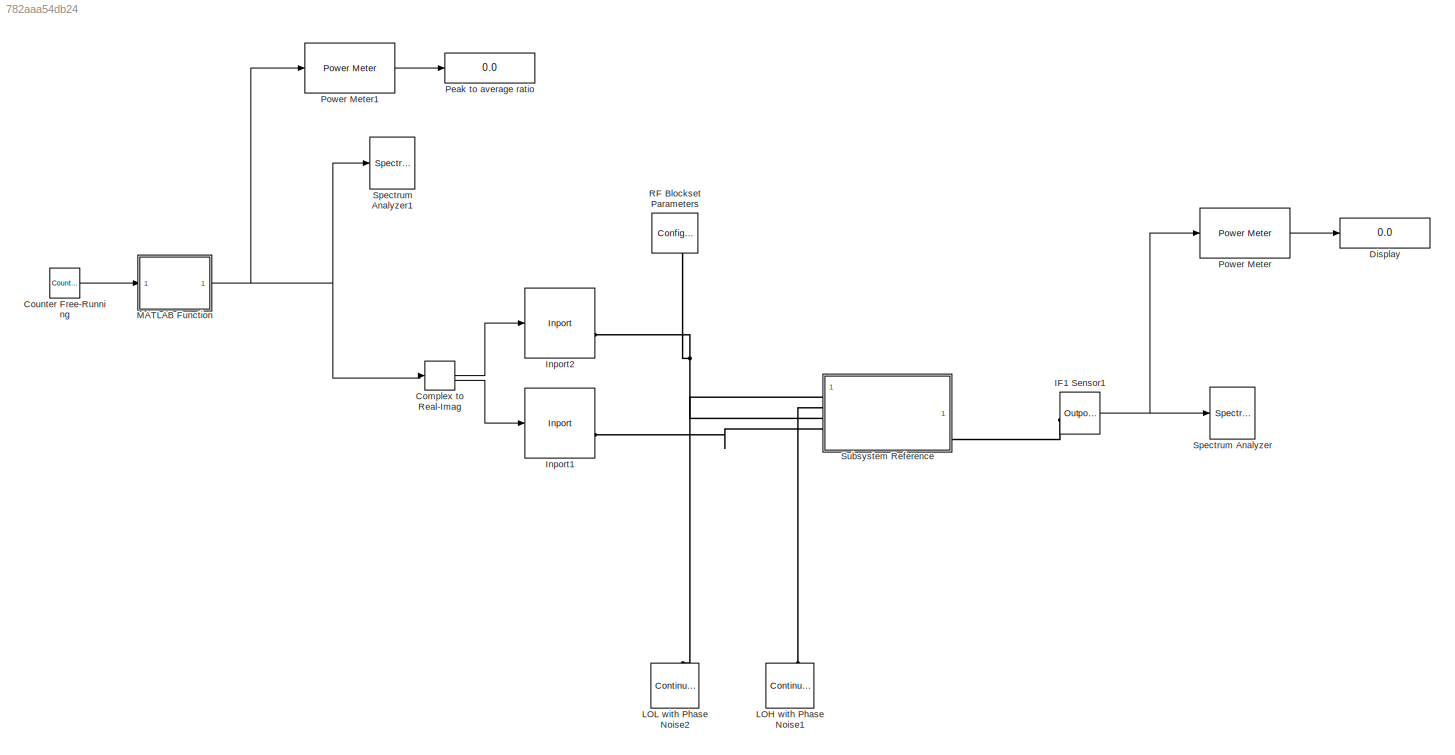
MODEL slx_782aaa54db24
KIND model
CONFIG AbsTol = auto
CONFIG EnableMultiTasking = off
CONFIG FixedStep = auto
CONFIG MaxStep = auto
CONFIG MinStep = auto
CONFIG PreLoadFcn = clear;\nOS=8\nsample_time = 1/116e6/8;\n\ncarriers.LO = 22e9;\ncarriers.LOL = carriers.LO/2;\ncarriers.LOH = carriers.LO*3;\ncarriers.OUT = carriers.LO*3.5;\n\n%Put all carriers in one vector for convenience\ncar_env = unique(structfun(@deal,carriers));\n\n\n% Lower limit of frequency (governed by impulse duration):\nDuration = sample_time*128;\nLLFreq = 1/Duration;\n\n\n%Upper limit of frequency (governed by sampl...<+318ch>
CONFIG RelTol = 1e-3
CONFIG SampleTimeConstraint = Unconstrained
CONFIG SolverName = VariableStepAuto
CONFIG StartTime = 0.0
CONFIG StopTime = 10.0
BLOCK [ComplexToRealImag] Complex to Real-Imag
BLOCK [Reference] Counter Free-Running  REF=simulink/Sources/Counter
Free-Running
  SourceBlock = simulink/Sources/Counter\nFree-Running
  SourceType = Counter Free-Running
BLOCK [Display] Display
  Decimation = 1
BLOCK [Reference] IF1 Sensor1  REF=simrfV2util1/Outport
  SourceBlock = simrfV2util1/Outport
  SourceType = Outport
BLOCK [Reference] Inport1  REF=simrfV2util1/Inport
  SourceBlock = simrfV2util1/Inport
  SourceType = Inport
BLOCK [Reference] Inport2  REF=simrfV2util1/Inport
  SourceBlock = simrfV2util1/Inport
  SourceType = Inport
BLOCK [Reference] LOH with Phase Noise1  REF=simrfV2sources1/Continuous
Wave
  NameLocation = right
  SourceBlock = simrfV2sources1/Continuous\nWave
  SourceType = CW Source
BLOCK [Reference] LOL with Phase Noise2  REF=simrfV2sources1/Continuous
Wave
  NameLocation = right
  SourceBlock = simrfV2sources1/Continuous\nWave
  SourceType = CW Source
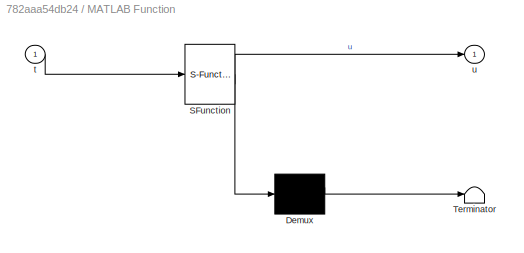
BLOCK [SubSystem] MATLAB Function
  ErrorFcn = Stateflow.Translate.translate
  LibrarySourceBlock = simulink/User-Defined\nFunctions/MATLAB Function
  PermitHierarchicalResolution = ExplicitOnly
  SFBlockType = MATLAB Function
  TreatAsAtomicUnit = on
BLOCK [Demux] MATLAB Function/ Demux 
  Outputs = 1
BLOCK [S-Function] MATLAB Function/ SFunction 
  EnableBusSupport = on
  FunctionName = sf_sfun
  PortCounts = [1 2]
  SFcnIsStateOwnerBlock = off
  SFunctionDeploymentMode = off
  Tag = Stateflow S-Function 2
BLOCK [Terminator] MATLAB Function/ Terminator 
BLOCK [Inport] MATLAB Function/t
BLOCK [Outport] MATLAB Function/u
BLOCK [Display] Peak to average ratio
  Decimation = 1
BLOCK [Reference] Power Meter  REF=dspstat3/Power Meter
  LibrarySourceBlock = commutil2/Power Meter
  SourceBlock = dspstat3/Power Meter
  SourceType = dsp.simulink.PowerMeter
BLOCK [Reference] Power Meter1  REF=dspstat3/Power Meter
  LibrarySourceBlock = commutil2/Power Meter
  SourceBlock = dspstat3/Power Meter
  SourceType = dsp.simulink.PowerMeter
BLOCK [Reference] RF Blockset Parameters  REF=simrfV2util1/Configuration
  NameLocation = right
  SourceBlock = simrfV2util1/Configuration
  SourceType = Configuration
BLOCK [SpectrumAnalyzer] Spectrum Analyzer
  ScopeSpecificationString = spbscopes.SpectrumAnalyzerBlockCfg('CurrentConfiguration', extmgr.ConfigurationSet(extmgr.Configuration('Core','General UI',true),extmgr.Configuration('Core','Source UI',true),extmgr.Configuration('Sources','WiredSimulink',true),extmgr.Configuration('Sources','Simulink',false),extmgr.Configuration('Sources','File',false),extmgr.Configuration('Sources','Workspace',false),extmgr.Configuration('Sourc...<+3322ch>
BLOCK [SpectrumAnalyzer] Spectrum Analyzer1
  ScopeSpecificationString = spbscopes.SpectrumAnalyzerBlockCfg('CurrentConfiguration', extmgr.ConfigurationSet(extmgr.Configuration('Core','General UI',true),extmgr.Configuration('Core','Source UI',true),extmgr.Configuration('Sources','WiredSimulink',true),extmgr.Configuration('Sources','Simulink',false),extmgr.Configuration('Sources','File',false),extmgr.Configuration('Sources','Workspace',false),extmgr.Configuration('Sourc...<+3436ch>
BLOCK [SubSystem] Subsystem Reference
  PortSchema = {"entries":[{"content":{"sides":[{"content":{"connectorIds":["LConn3","LConn4","LConn2","LConn1"]},"type":"ConnectorPlacement.EquallySpacedRectSide","uuid":"13d4ea5a-fa0b-40a2-b728-0cb27c04c45c"},{"content":{"connectorIds":["LConn5"],"side":"RIGHT"},"type":"ConnectorPlacement.EquallySpacedRectSide","uuid":"f63a5880-6d48-44cf-a00e-69a0a1f06c9f"},{"content":{"connectorIds":[],"side":"TOP"},"type":"C...<+272ch>
  ReferencedSubsystem = up_converter
LINE Complex to Real-Imag:1 -> Inport2:1
LINE Complex to Real-Imag:2 -> Inport1:1
LINE Counter Free-Running:1 -> MATLAB Function:1
NET IF1 Sensor1:1 -> Power Meter:1, Spectrum Analyzer:1
NET MATLAB Function:1 -> Complex to Real-Imag:1, Power Meter1:1, Spectrum Analyzer1:1
LINE Power Meter1:1 -> Peak to average ratio:1
LINE Power Meter:1 -> Display:1
PLINE IF1 Sensor1:LConn1 -- Subsystem Reference:LConn5
PLINE Inport1:RConn1 -- Subsystem Reference:LConn4
PNET net1: Inport2:RConn1 -- RF Blockset Parameters:LConn1 -- Subsystem Reference:LConn3
PLINE LOH with Phase Noise1:LConn1 -- Subsystem Reference:LConn2
PLINE LOL with Phase Noise2:LConn1 -- Subsystem Reference:LConn1
note: NET lines group one-source signal fan-out (src -> all destinations, sorted); 1:1 wires keep LINE; PNET lines group multi-terminal physical nets as a canonical sorted terminal list (undirected conserving connections); 2-terminal nets keep the pairwise PLINE form
CHART MATLAB Function states=1 transitions=1
  STATE_LABEL 'eML_blk_kernel()'
  STATE_LABEL 'SCRIPT:\nfunction u   = fcn(t)\n   %test of the block\n   t=double(t);\n   pdb=-3;   %dial input power in dBm 50-ohm reference\n   v = sqrt(1/1000*10^(pdb/10));\n   f=[1 2 3 4 5 6  ]*455e-5;\n   u=v*sum(exp(2.0*3.14*f*t*1j));\n '
CHART  states=0 transitions=0
